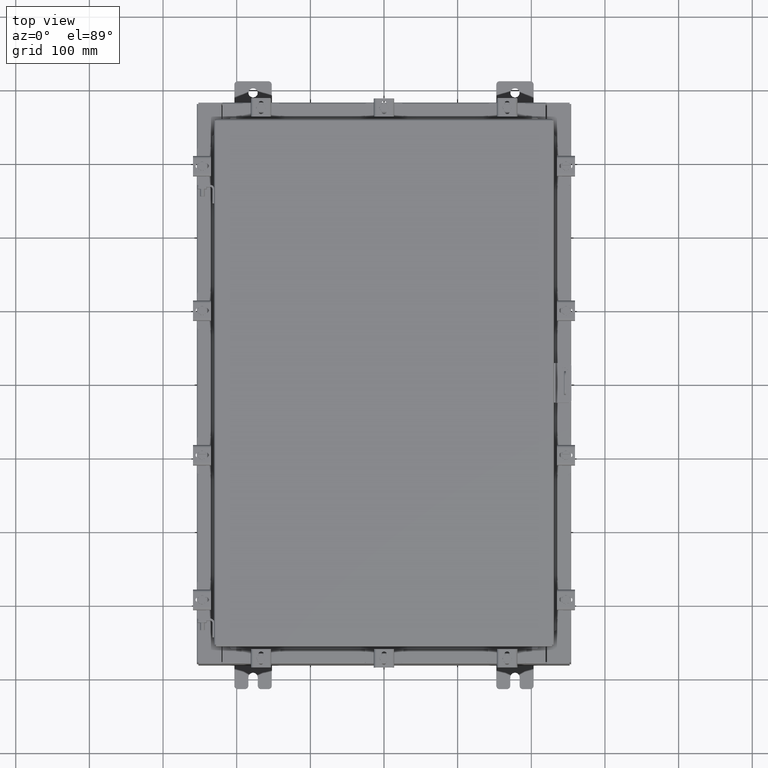
[diagram: clean part render]
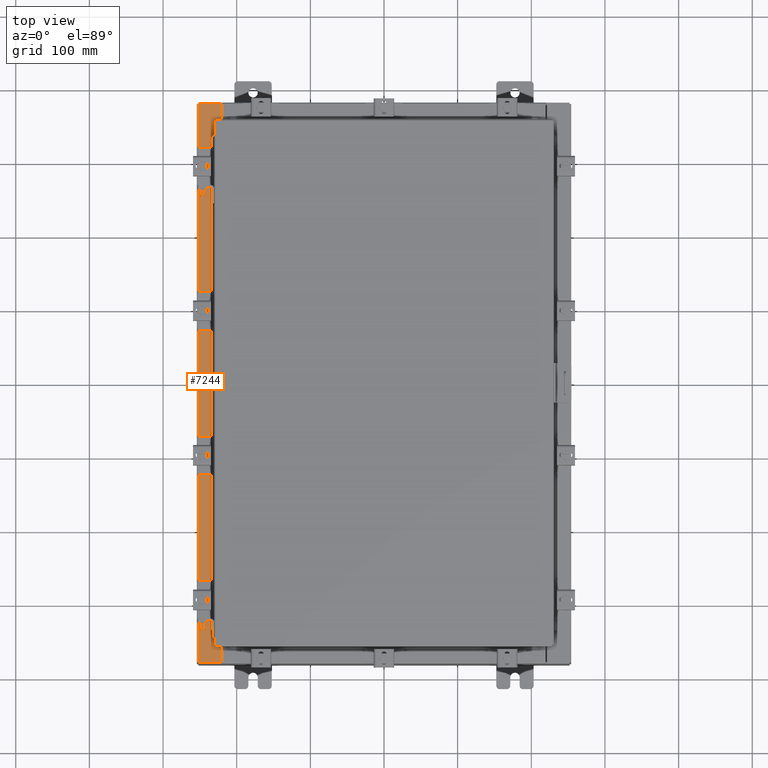
[diagram: same view with one face highlighted and labeled with its STEP entity id]
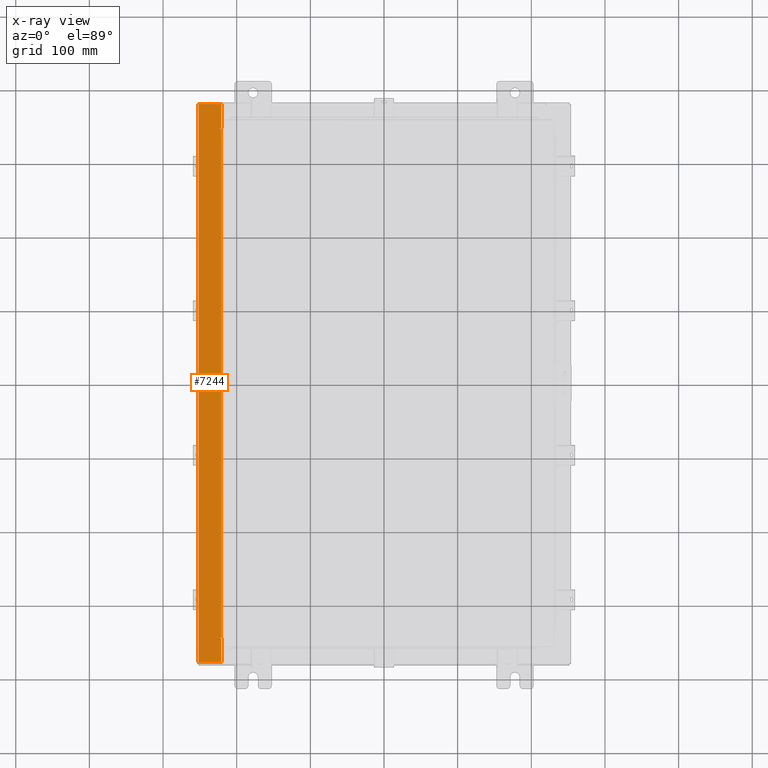
[diagram: x-ray of the same camera — body ghosted, the highlighted face saturated]
A machine part, top view. The second image highlights one B-rep face of the part: STEP entity #7244.
The next image is the same camera in x-ray: the body ghosted, the highlighted face saturated — about 0% of this face is hidden behind the body in this view.
In plain terms, the highlighted planar face has unit normal (0, -0, -1).
Its self-contained STEP definition (entity closure, byte-faithful):
#93 = EDGE_CURVE ( 'NONE', #19772, #22358, #7740, .T. ) ;
#136 = ORIENTED_EDGE ( 'NONE', *, *, #4316, .T. ) ;
#162 = CARTESIAN_POINT ( 'NONE',  ( -9.912300000000017900, -14.92529999999999600, 5.925299999999999100 ) ) ;
#406 = DIRECTION ( 'NONE',  ( 4.379057701015054300E-047, 1.000000000000000000, -3.660694248911932200E-017 ) ) ;
#615 = ORIENTED_EDGE ( 'NONE', *, *, #2474, .T. ) ;
#953 = CARTESIAN_POINT ( 'NONE',  ( -4.252457061909003200E-014, 14.92530000000000500, 5.925300000000069300 ) ) ;
#976 = ORIENTED_EDGE ( 'NONE', *, *, #1315, .T. ) ;
#1058 = LINE ( 'NONE', #22326, #15293 ) ;
#1269 = VERTEX_POINT ( 'NONE', #1962 ) ;
#1315 = EDGE_CURVE ( 'NONE', #15662, #8288, #2378, .T. ) ;
#1334 = VERTEX_POINT ( 'NONE', #16524 ) ;
#1798 = CARTESIAN_POINT ( 'NONE',  ( -8.750050000000021200, 13.59375000000000200, 5.925300000000008000 ) ) ;
#1962 = CARTESIAN_POINT ( 'NONE',  ( -8.699700000000019500, -13.63109999999999600, 5.925300000000008000 ) ) ;
#2078 = EDGE_CURVE ( 'NONE', #7808, #8384, #12690, .T. ) ;
#2296 = CARTESIAN_POINT ( 'NONE',  ( -8.750050000000021200, -13.61242499999999500, 5.925300000000008000 ) ) ;
#2378 = LINE ( 'NONE', #7651, #20824 ) ;
#2474 = EDGE_CURVE ( 'NONE', #13882, #1269, #4442, .T. ) ;
#2850 = AXIS2_PLACEMENT_3D ( 'NONE', #18375, #7682, #20177 ) ;
#2964 = VECTOR ( 'NONE', #19637, 39.37007874015748100 ) ;
#3225 = CARTESIAN_POINT ( 'NONE',  ( -8.699700000000019500, 13.63110000000000400, 5.925300000000008000 ) ) ;
#3895 = VECTOR ( 'NONE', #6413, 39.37007874015748100 ) ;
#4056 = DIRECTION ( 'NONE',  ( 1.000000000000000000, 0.0000000000000000000, 0.0000000000000000000 ) ) ;
#4316 = EDGE_CURVE ( 'NONE', #7808, #13882, #8606, .T. ) ;
#4442 = LINE ( 'NONE', #20016, #13395 ) ;
#4798 = VERTEX_POINT ( 'NONE', #9986 ) ;
#4966 = CARTESIAN_POINT ( 'NONE',  ( -9.912300000000019700, 14.92530000000000500, 5.925299999999999100 ) ) ;
#5827 = DIRECTION ( 'NONE',  ( 4.379057701015054300E-047, 1.000000000000000000, -3.660694248911932200E-017 ) ) ;
#6146 = CARTESIAN_POINT ( 'NONE',  ( -8.699700000000019500, -14.92529999999999600, 5.925300000000008000 ) ) ;
#6169 = DIRECTION ( 'NONE',  ( -1.000000000000000000, 0.0000000000000000000, 0.0000000000000000000 ) ) ;
#6413 = DIRECTION ( 'NONE',  ( -1.000000000000000000, -4.379057701015054300E-047, -7.132762385546378400E-015 ) ) ;
#6427 = VECTOR ( 'NONE', #6780, 39.37007874015748100 ) ;
#6617 = CARTESIAN_POINT ( 'NONE',  ( -8.699700000000019500, 14.92530000000000500, 5.925300000000007100 ) ) ;
#6780 = DIRECTION ( 'NONE',  ( -7.321388497823866900E-017, 1.000000000000000000, -3.660694248911984600E-017 ) ) ;
#7244 = ADVANCED_FACE ( 'NONE', ( #15478 ), #19594, .F. ) ;
#7651 = CARTESIAN_POINT ( 'NONE',  ( -8.699700000000019500, 2.169071163307790200E-016, 5.925300000000008000 ) ) ;
#7682 = DIRECTION ( 'NONE',  ( -7.132762385546378400E-015, 3.660694248911932200E-017, 1.000000000000000000 ) ) ;
#7740 = LINE ( 'NONE', #11631, #16647 ) ;
#7808 = VERTEX_POINT ( 'NONE', #162 ) ;
#7811 = CIRCLE ( 'NONE', #2850, 0.01867499999999949400 ) ;
#7813 = EDGE_LOOP ( 'NONE', ( #18407, #976, #13295, #23155, #136, #615, #14351, #9987, #22282, #20061, #16887, #17922 ) ) ;
#8283 = LINE ( 'NONE', #21460, #2964 ) ;
#8288 = VERTEX_POINT ( 'NONE', #6617 ) ;
#8384 = VERTEX_POINT ( 'NONE', #10504 ) ;
#8606 = LINE ( 'NONE', #10303, #13358 ) ;
#8633 = CIRCLE ( 'NONE', #20084, 0.01867499999999949400 ) ;
#8897 = DIRECTION ( 'NONE',  ( 7.132762385546378400E-015, -3.660694248911932200E-017, -1.000000000000000000 ) ) ;
#9422 = DIRECTION ( 'NONE',  ( 1.000000000000000000, 0.0000000000000000000, 0.0000000000000000000 ) ) ;
#9769 = LINE ( 'NONE', #953, #3895 ) ;
#9827 = DIRECTION ( 'NONE',  ( -0.0000000000000000000, -1.000000000000000000, -0.0000000000000000000 ) ) ;
#9986 = CARTESIAN_POINT ( 'NONE',  ( -8.750050000000021200, 13.63110000000000200, 5.925300000000007100 ) ) ;
#9987 = ORIENTED_EDGE ( 'NONE', *, *, #13100, .F. ) ;
#10226 = AXIS2_PLACEMENT_3D ( 'NONE', #15983, #8897, #21409 ) ;
#10303 = CARTESIAN_POINT ( 'NONE',  ( -4.252457061909004500E-014, -14.92529999999999600, 5.925300000000070200 ) ) ;
#10450 = VECTOR ( 'NONE', #9422, 39.37007874015748100 ) ;
#10504 = CARTESIAN_POINT ( 'NONE',  ( -9.912300000000017900, 14.92530000000000500, 5.925299999999999100 ) ) ;
#11024 = LINE ( 'NONE', #14811, #10450 ) ;
#11184 = VECTOR ( 'NONE', #6169, 39.37007874015748100 ) ;
#11512 = DIRECTION ( 'NONE',  ( 1.000000000000000000, 0.0000000000000000000, 0.0000000000000000000 ) ) ;
#11544 = CARTESIAN_POINT ( 'NONE',  ( -8.750050000000021200, -13.63109999999999500, 5.925300000000008000 ) ) ;
#11631 = CARTESIAN_POINT ( 'NONE',  ( -8.712700000000021200, 13.59375000000000400, 5.925300000000008000 ) ) ;
#12063 = EDGE_CURVE ( 'NONE', #22358, #1334, #15930, .T. ) ;
#12690 = LINE ( 'NONE', #4966, #6427 ) ;
#13100 = EDGE_CURVE ( 'NONE', #1334, #17164, #8633, .T. ) ;
#13284 = EDGE_CURVE ( 'NONE', #8288, #8384, #9769, .T. ) ;
#13295 = ORIENTED_EDGE ( 'NONE', *, *, #13284, .T. ) ;
#13358 = VECTOR ( 'NONE', #22841, 39.37007874015748100 ) ;
#13395 = VECTOR ( 'NONE', #406, 39.37007874015748100 ) ;
#13882 = VERTEX_POINT ( 'NONE', #6146 ) ;
#14351 = ORIENTED_EDGE ( 'NONE', *, *, #22869, .F. ) ;
#14437 = VERTEX_POINT ( 'NONE', #1798 ) ;
#14784 = DIRECTION ( 'NONE',  ( -7.132762385546378400E-015, 3.660694248911932200E-017, 1.000000000000000000 ) ) ;
#14811 = CARTESIAN_POINT ( 'NONE',  ( -8.750050000000021200, 13.59375000000000200, 5.925300000000008000 ) ) ;
#15293 = VECTOR ( 'NONE', #11512, 39.37007874015748100 ) ;
#15374 = CARTESIAN_POINT ( 'NONE',  ( -8.712700000000021200, -13.59374999999999500, 5.925300000000008000 ) ) ;
#15478 = FACE_OUTER_BOUND ( 'NONE', #7813, .T. ) ;
#15662 = VERTEX_POINT ( 'NONE', #3225 ) ;
#15930 = LINE ( 'NONE', #16868, #11184 ) ;
#15983 = CARTESIAN_POINT ( 'NONE',  ( -4.252457061909003800E-014, 2.169071163307812900E-016, 5.925300000000070200 ) ) ;
#16012 = CARTESIAN_POINT ( 'NONE',  ( -8.712700000000021200, 13.59375000000000200, 5.925300000000008000 ) ) ;
#16105 = EDGE_CURVE ( 'NONE', #15662, #4798, #8283, .T. ) ;
#16524 = CARTESIAN_POINT ( 'NONE',  ( -8.750050000000021200, -13.59374999999999500, 5.925300000000008000 ) ) ;
#16647 = VECTOR ( 'NONE', #9827, 39.37007874015748100 ) ;
#16868 = CARTESIAN_POINT ( 'NONE',  ( -8.712700000000021200, -13.59374999999999500, 5.925300000000008000 ) ) ;
#16887 = ORIENTED_EDGE ( 'NONE', *, *, #18946, .F. ) ;
#17164 = VERTEX_POINT ( 'NONE', #11544 ) ;
#17922 = ORIENTED_EDGE ( 'NONE', *, *, #21919, .F. ) ;
#18375 = CARTESIAN_POINT ( 'NONE',  ( -8.750050000000021200, 13.61242500000000200, 5.925300000000008000 ) ) ;
#18407 = ORIENTED_EDGE ( 'NONE', *, *, #16105, .F. ) ;
#18946 = EDGE_CURVE ( 'NONE', #14437, #19772, #11024, .T. ) ;
#19594 = PLANE ( 'NONE',  #10226 ) ;
#19637 = DIRECTION ( 'NONE',  ( -1.000000000000000000, -4.340572780399910900E-014, 0.0000000000000000000 ) ) ;
#19772 = VERTEX_POINT ( 'NONE', #16012 ) ;
#20016 = CARTESIAN_POINT ( 'NONE',  ( -8.699700000000019500, 2.169071163307790200E-016, 5.925300000000008000 ) ) ;
#20061 = ORIENTED_EDGE ( 'NONE', *, *, #93, .F. ) ;
#20084 = AXIS2_PLACEMENT_3D ( 'NONE', #2296, #14784, #4056 ) ;
#20177 = DIRECTION ( 'NONE',  ( 1.000000000000000000, 0.0000000000000000000, 0.0000000000000000000 ) ) ;
#20824 = VECTOR ( 'NONE', #5827, 39.37007874015748100 ) ;
#21409 = DIRECTION ( 'NONE',  ( -1.000000000000000000, 0.0000000000000000000, -7.132762385546378400E-015 ) ) ;
#21460 = CARTESIAN_POINT ( 'NONE',  ( -8.699700000000019500, 13.63110000000000400, 5.925300000000008000 ) ) ;
#21919 = EDGE_CURVE ( 'NONE', #4798, #14437, #7811, .T. ) ;
#22282 = ORIENTED_EDGE ( 'NONE', *, *, #12063, .F. ) ;
#22326 = CARTESIAN_POINT ( 'NONE',  ( -8.750050000000021200, -13.63109999999999500, 5.925300000000008000 ) ) ;
#22358 = VERTEX_POINT ( 'NONE', #15374 ) ;
#22841 = DIRECTION ( 'NONE',  ( 1.000000000000000000, 4.379057701015054300E-047, 7.132762385546378400E-015 ) ) ;
#22869 = EDGE_CURVE ( 'NONE', #17164, #1269, #1058, .T. ) ;
#23155 = ORIENTED_EDGE ( 'NONE', *, *, #2078, .F. ) ;